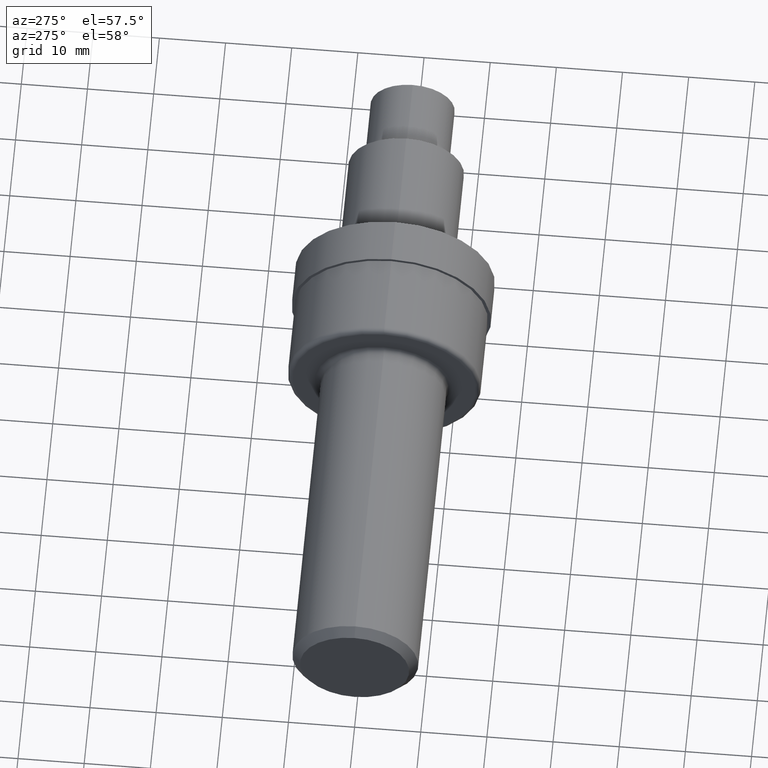
[diagram: clean part render]
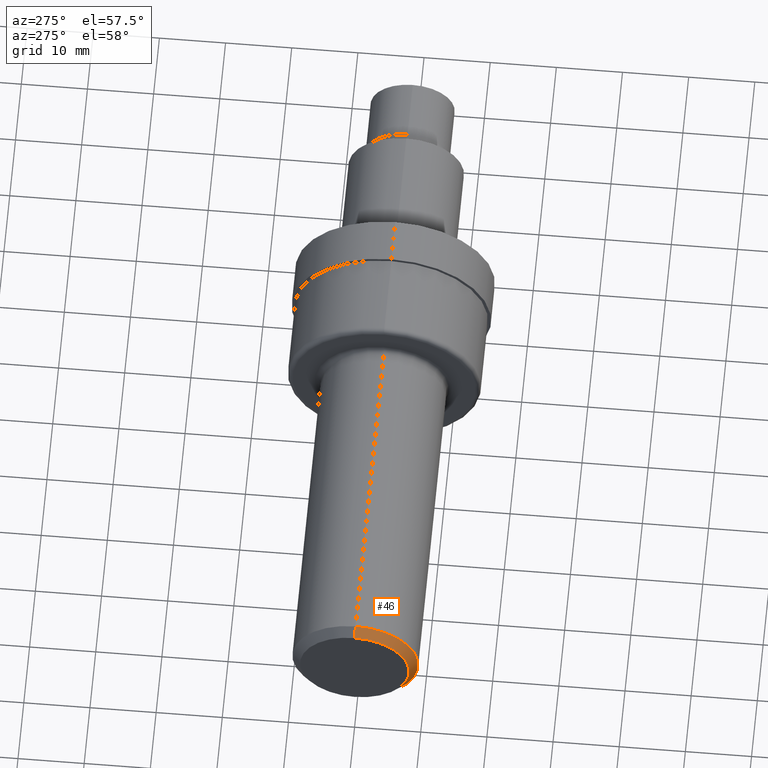
[diagram: same view with one face highlighted and labeled with its STEP entity id]
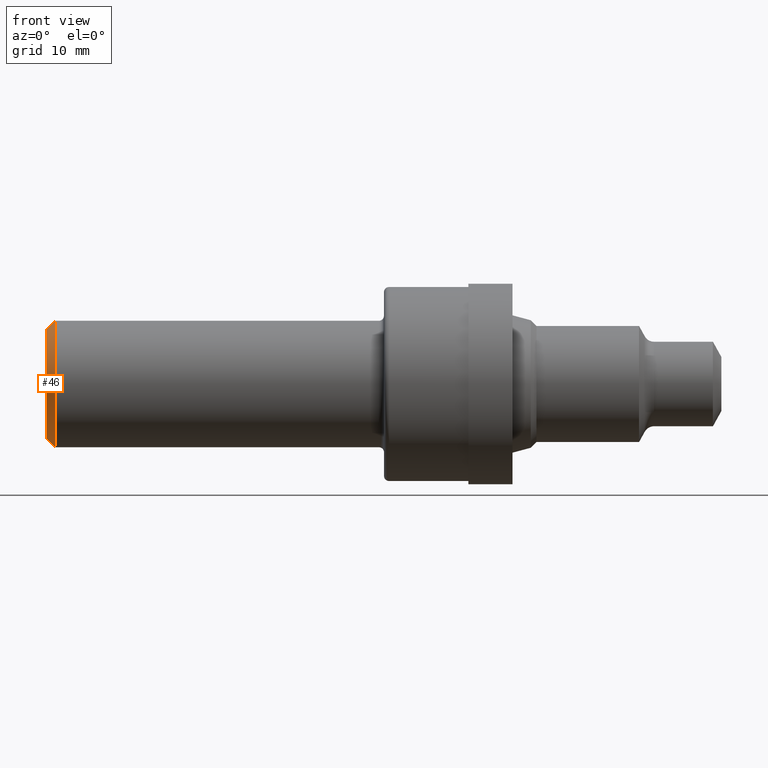
[diagram: same view with one face highlighted and labeled with its STEP entity id]
A machine part, auxiliary view. The second image highlights one B-rep face of the part: STEP entity #46.
A second angle (front view) of the same face is appended — the face is thin or edge-on in the first view.
In plain terms, the highlighted conical surface has half-angle 45 deg.
Its self-contained STEP definition (entity closure, byte-faithful):
#2 = CARTESIAN_POINT ( 'NONE',  ( 0.05000000000000000278, 0.0000000000000000000, 0.0000000000000000000 ) ) ;
#4 = CARTESIAN_POINT ( 'NONE',  ( 0.0000000000000000000, 0.0000000000000000000, -0.3248500000000001386 ) ) ;
#9 = LINE ( 'NONE', #530, #536 ) ;
#46 = ADVANCED_FACE ( 'NONE', ( #495 ), #740, .T. ) ;
#67 = DIRECTION ( 'NONE',  ( 0.7071067811865483499, 0.0000000000000000000, -0.7071067811865465735 ) ) ;
#79 = DIRECTION ( 'NONE',  ( 0.0000000000000000000, 0.0000000000000000000, -1.000000000000000000 ) ) ;
#80 = CARTESIAN_POINT ( 'NONE',  ( 0.05000000000000000278, 0.0000000000000000000, -0.3748500000000000165 ) ) ;
#82 = DIRECTION ( 'NONE',  ( -1.000000000000000000, -0.0000000000000000000, -0.0000000000000000000 ) ) ;
#90 = ORIENTED_EDGE ( 'NONE', *, *, #679, .T. ) ;
#102 = EDGE_CURVE ( 'NONE', #237, #753, #9, .T. ) ;
#118 = AXIS2_PLACEMENT_3D ( 'NONE', #2, #660, #79 ) ;
#139 = CIRCLE ( 'NONE', #490, 0.3748500000000000165 ) ;
#225 = EDGE_CURVE ( 'NONE', #237, #356, #326, .T. ) ;
#230 = EDGE_CURVE ( 'NONE', #356, #833, #783, .T. ) ;
#237 = VERTEX_POINT ( 'NONE', #4 ) ;
#260 = CARTESIAN_POINT ( 'NONE',  ( 0.0000000000000000000, 4.284426826817016124E-17, 0.3248500000000001386 ) ) ;
#280 = CARTESIAN_POINT ( 'NONE',  ( 0.0000000000000000000, 0.0000000000000000000, 0.0000000000000000000 ) ) ;
#282 = ORIENTED_EDGE ( 'NONE', *, *, #230, .F. ) ;
#311 = EDGE_LOOP ( 'NONE', ( #282, #662, #441, #90 ) ) ;
#326 = CIRCLE ( 'NONE', #476, 0.3248500000000001386 ) ;
#356 = VERTEX_POINT ( 'NONE', #260 ) ;
#423 = CARTESIAN_POINT ( 'NONE',  ( 0.05000000000000000278, 4.590588526603853748E-17, 0.3748500000000000165 ) ) ;
#438 = DIRECTION ( 'NONE',  ( -1.000000000000000000, -0.0000000000000000000, -0.0000000000000000000 ) ) ;
#441 = ORIENTED_EDGE ( 'NONE', *, *, #102, .T. ) ;
#455 = VECTOR ( 'NONE', #824, 39.37007874015748854 ) ;
#467 = CARTESIAN_POINT ( 'NONE',  ( 0.05000000000000000278, 4.590588526603853748E-17, 0.3748500000000000165 ) ) ;
#476 = AXIS2_PLACEMENT_3D ( 'NONE', #280, #82, #539 ) ;
#490 = AXIS2_PLACEMENT_3D ( 'NONE', #809, #438, #621 ) ;
#495 = FACE_OUTER_BOUND ( 'NONE', #311, .T. ) ;
#530 = CARTESIAN_POINT ( 'NONE',  ( 0.05000000000000000278, 0.0000000000000000000, -0.3748500000000000165 ) ) ;
#536 = VECTOR ( 'NONE', #67, 39.37007874015748854 ) ;
#539 = DIRECTION ( 'NONE',  ( 0.0000000000000000000, 0.0000000000000000000, 1.000000000000000000 ) ) ;
#621 = DIRECTION ( 'NONE',  ( 0.0000000000000000000, 0.0000000000000000000, 1.000000000000000000 ) ) ;
#660 = DIRECTION ( 'NONE',  ( 1.000000000000000000, 0.0000000000000000000, 0.0000000000000000000 ) ) ;
#662 = ORIENTED_EDGE ( 'NONE', *, *, #225, .F. ) ;
#679 = EDGE_CURVE ( 'NONE', #753, #833, #139, .T. ) ;
#740 = CONICAL_SURFACE ( 'NONE', #118, 0.3748500000000000165, 0.7853981633974470578 ) ;
#753 = VERTEX_POINT ( 'NONE', #80 ) ;
#783 = LINE ( 'NONE', #467, #455 ) ;
#809 = CARTESIAN_POINT ( 'NONE',  ( 0.05000000000000000278, 0.0000000000000000000, 0.0000000000000000000 ) ) ;
#824 = DIRECTION ( 'NONE',  ( 0.7071067811865483499, 8.659560562354922997E-17, 0.7071067811865465735 ) ) ;
#833 = VERTEX_POINT ( 'NONE', #423 ) ;